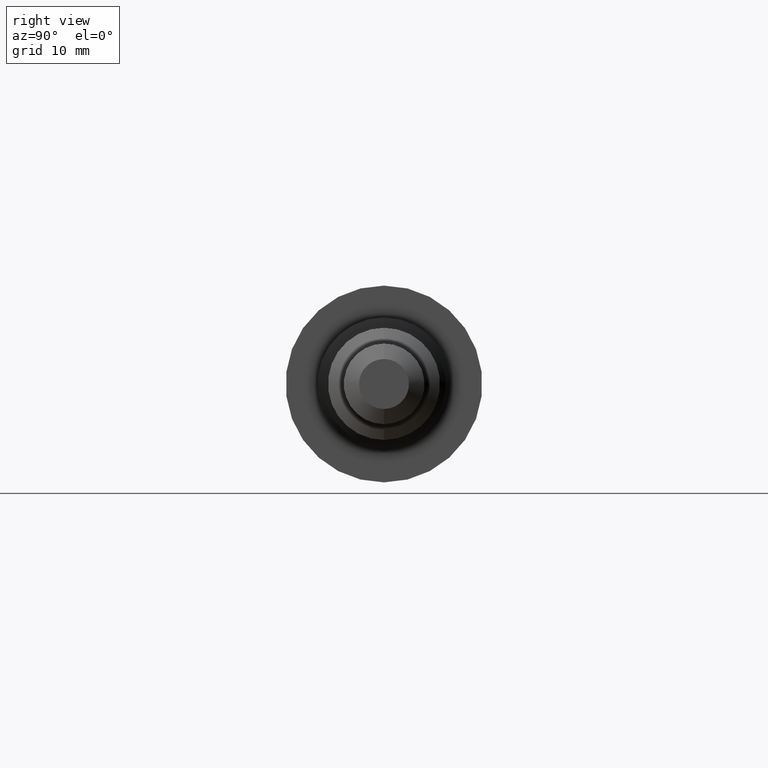
[diagram: clean part render]
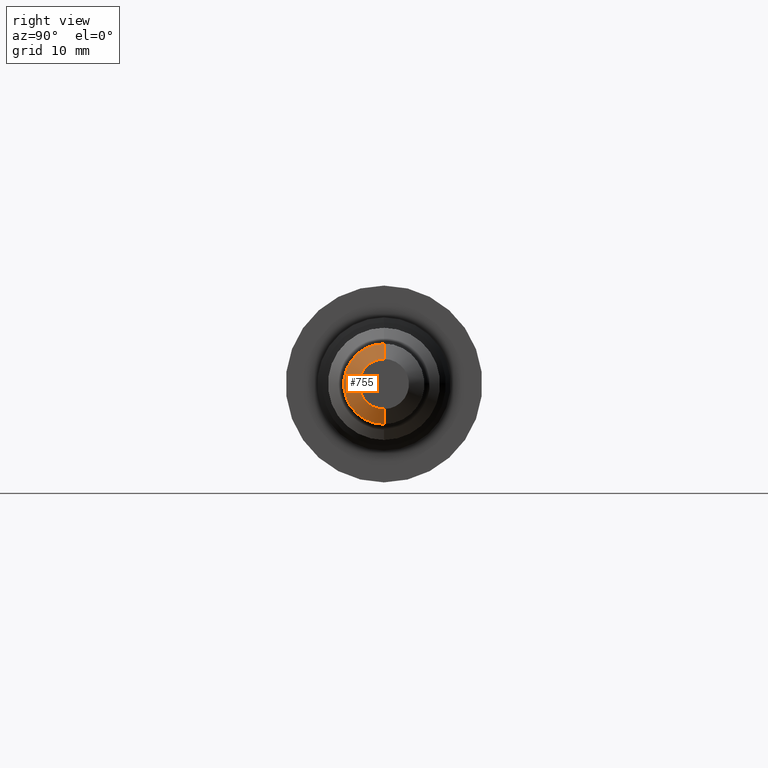
[diagram: same view with one face highlighted and labeled with its STEP entity id]
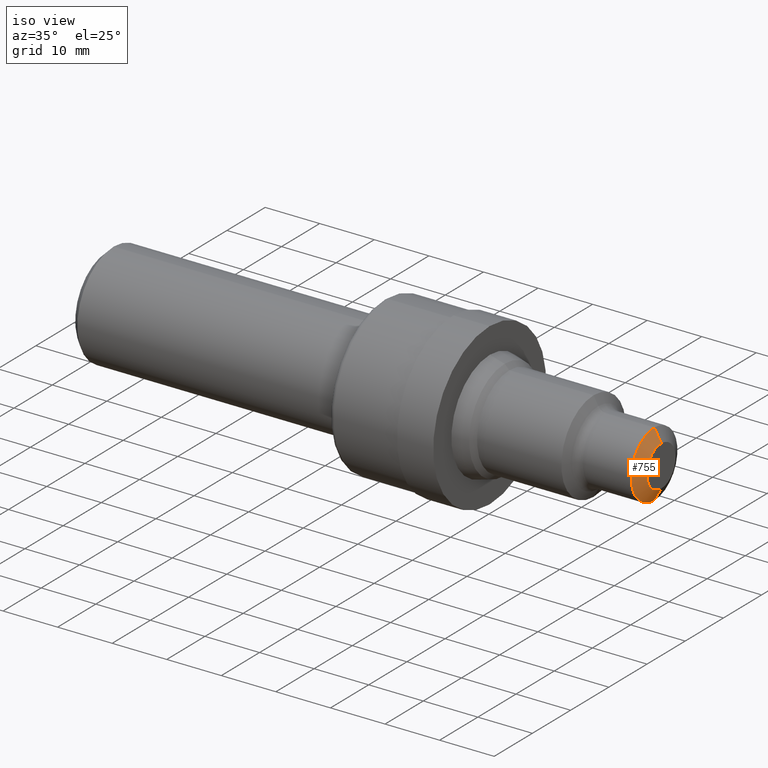
[diagram: same view with one face highlighted and labeled with its STEP entity id]
A machine part, right view. The second image highlights one B-rep face of the part: STEP entity #755.
A second angle (iso view) of the same face is appended — the face is thin or edge-on in the first view.
In plain terms, the highlighted conical surface has half-angle 61 deg.
Its self-contained STEP definition (entity closure, byte-faithful):
#4 = DIRECTION ( 'NONE',  ( 0.0000000000000000000, 0.0000000000000000000, 1.000000000000000000 ) ) ;
#45 = DIRECTION ( 'NONE',  ( 0.0000000000000000000, 0.0000000000000000000, 1.000000000000000000 ) ) ;
#47 = DIRECTION ( 'NONE',  ( -1.000000000000000000, -0.0000000000000000000, -0.0000000000000000000 ) ) ;
#50 = VERTEX_POINT ( 'NONE', #214 ) ;
#82 = AXIS2_PLACEMENT_3D ( 'NONE', #330, #470, #4 ) ;
#141 = DIRECTION ( 'NONE',  ( -0.4848096202463347826, 1.071100224819458088E-16, -0.8746197071393970734 ) ) ;
#193 = DIRECTION ( 'NONE',  ( -0.4848096202463347826, 0.0000000000000000000, 0.8746197071393970734 ) ) ;
#214 = CARTESIAN_POINT ( 'NONE',  ( 3.950000000000000178, 0.0000000000000000000, 0.2379000000000000004 ) ) ;
#228 = ORIENTED_EDGE ( 'NONE', *, *, #266, .T. ) ;
#233 = ORIENTED_EDGE ( 'NONE', *, *, #365, .T. ) ;
#266 = EDGE_CURVE ( 'NONE', #493, #833, #329, .T. ) ;
#268 = CARTESIAN_POINT ( 'NONE',  ( 4.000000000000000000, 2.361104407921024020E-17, -0.1476976122364287436 ) ) ;
#269 = CONICAL_SURFACE ( 'NONE', #580, 0.1476976122364287436, 1.064650843716543616 ) ;
#288 = FACE_OUTER_BOUND ( 'NONE', #523, .T. ) ;
#291 = CARTESIAN_POINT ( 'NONE',  ( 4.000000000000000000, 0.0000000000000000000, 0.0000000000000000000 ) ) ;
#314 = VECTOR ( 'NONE', #141, 39.37007874015748143 ) ;
#329 = CIRCLE ( 'NONE', #637, 0.1476976122364287436 ) ;
#330 = CARTESIAN_POINT ( 'NONE',  ( 3.950000000000000178, 0.0000000000000000000, 0.0000000000000000000 ) ) ;
#356 = DIRECTION ( 'NONE',  ( -1.000000000000000000, -0.0000000000000000000, -0.0000000000000000000 ) ) ;
#362 = VECTOR ( 'NONE', #193, 39.37007874015748143 ) ;
#365 = EDGE_CURVE ( 'NONE', #833, #50, #829, .T. ) ;
#394 = ORIENTED_EDGE ( 'NONE', *, *, #423, .F. ) ;
#423 = EDGE_CURVE ( 'NONE', #493, #832, #700, .T. ) ;
#470 = DIRECTION ( 'NONE',  ( -1.000000000000000000, -0.0000000000000000000, -0.0000000000000000000 ) ) ;
#493 = VERTEX_POINT ( 'NONE', #268 ) ;
#505 = CARTESIAN_POINT ( 'NONE',  ( 4.000000000000000000, 0.0000000000000000000, 0.1476976122364287436 ) ) ;
#523 = EDGE_LOOP ( 'NONE', ( #394, #228, #233, #839 ) ) ;
#536 = EDGE_CURVE ( 'NONE', #832, #50, #721, .T. ) ;
#575 = CARTESIAN_POINT ( 'NONE',  ( 4.000000000000000000, 0.0000000000000000000, 0.0000000000000000000 ) ) ;
#580 = AXIS2_PLACEMENT_3D ( 'NONE', #291, #356, #45 ) ;
#584 = CARTESIAN_POINT ( 'NONE',  ( 4.000000000000000000, 0.0000000000000000000, 0.1476976122364287436 ) ) ;
#637 = AXIS2_PLACEMENT_3D ( 'NONE', #575, #47, #642 ) ;
#642 = DIRECTION ( 'NONE',  ( 0.0000000000000000000, 0.0000000000000000000, 1.000000000000000000 ) ) ;
#700 = LINE ( 'NONE', #723, #314 ) ;
#705 = CARTESIAN_POINT ( 'NONE',  ( 3.950000000000000178, 2.913434735171553361E-17, -0.2379000000000000004 ) ) ;
#721 = CIRCLE ( 'NONE', #82, 0.2379000000000000004 ) ;
#723 = CARTESIAN_POINT ( 'NONE',  ( 4.000000000000000000, 1.808774080670494369E-17, -0.1476976122364287436 ) ) ;
#755 = ADVANCED_FACE ( 'NONE', ( #288 ), #269, .T. ) ;
#829 = LINE ( 'NONE', #584, #362 ) ;
#832 = VERTEX_POINT ( 'NONE', #705 ) ;
#833 = VERTEX_POINT ( 'NONE', #505 ) ;
#839 = ORIENTED_EDGE ( 'NONE', *, *, #536, .F. ) ;